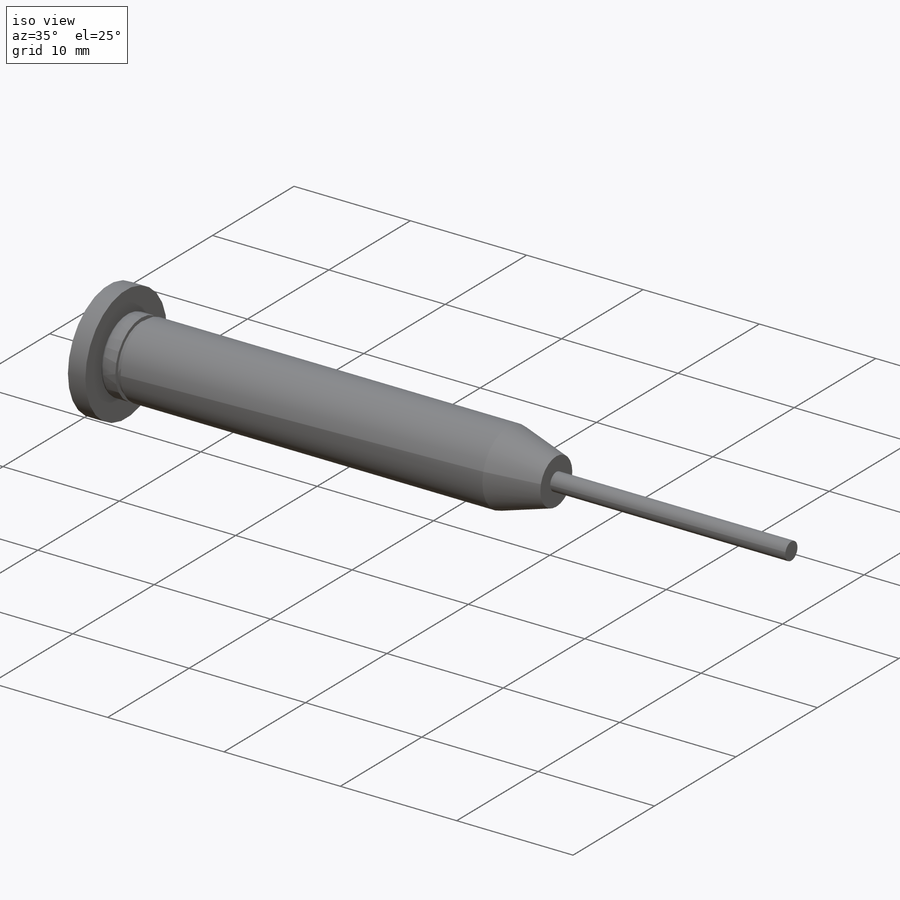
[diagram: iso view]
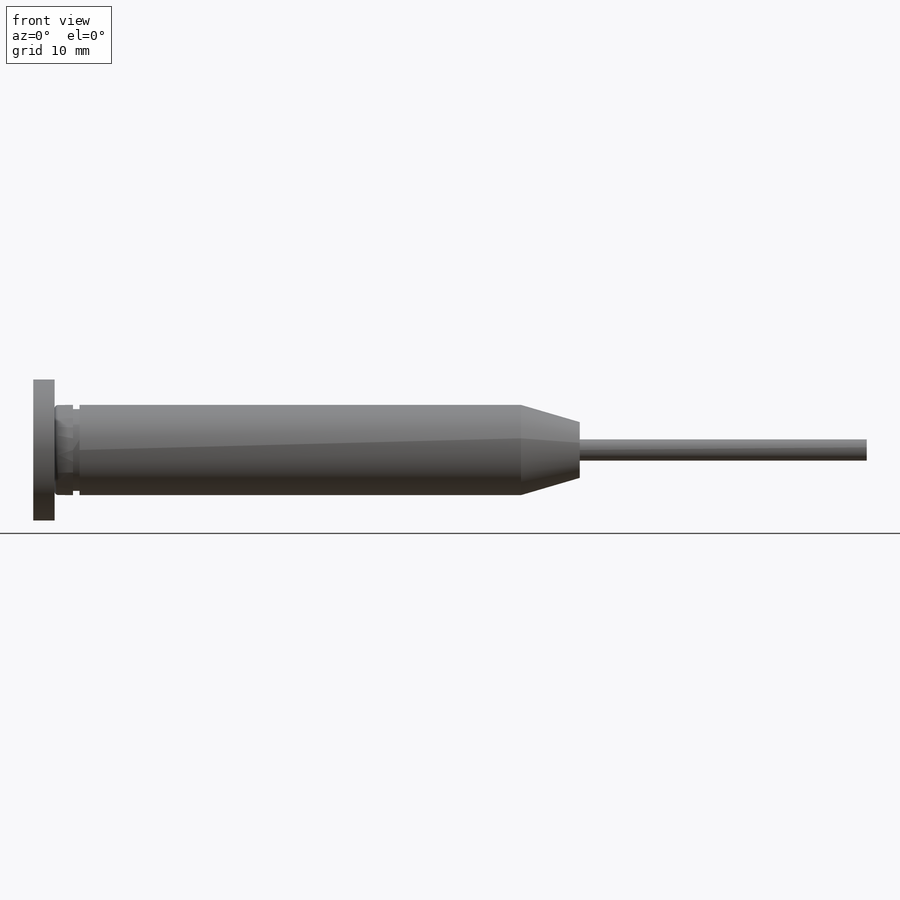
[diagram: front view]
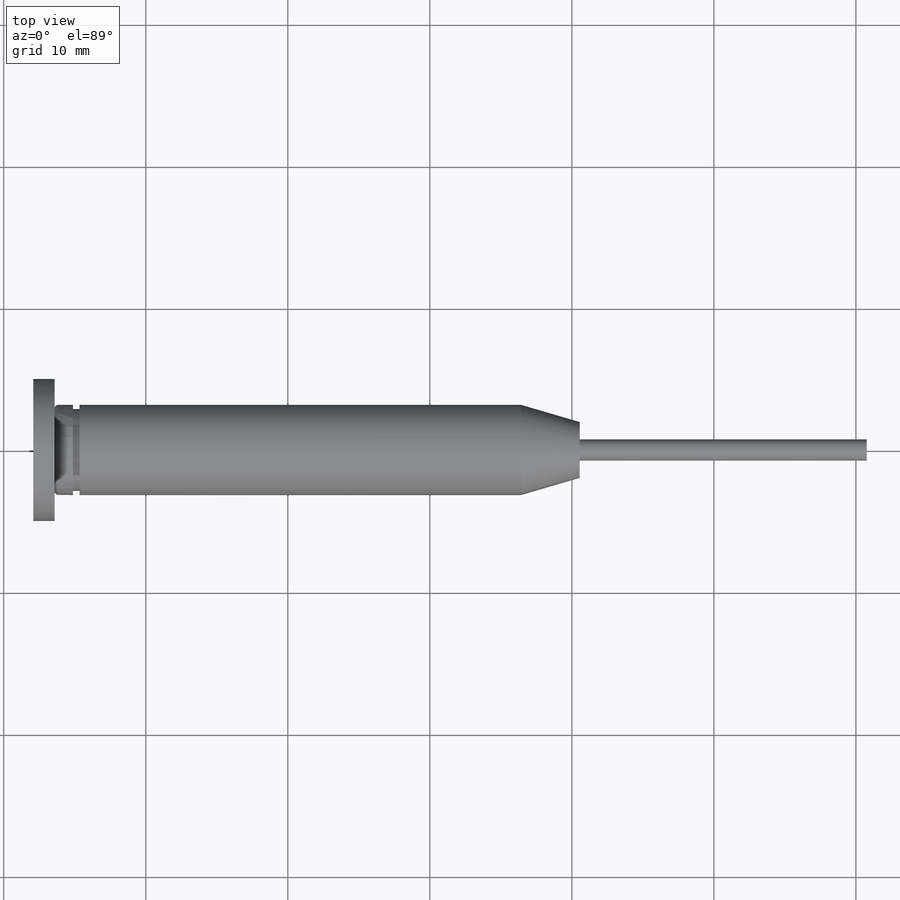
[diagram: top view]
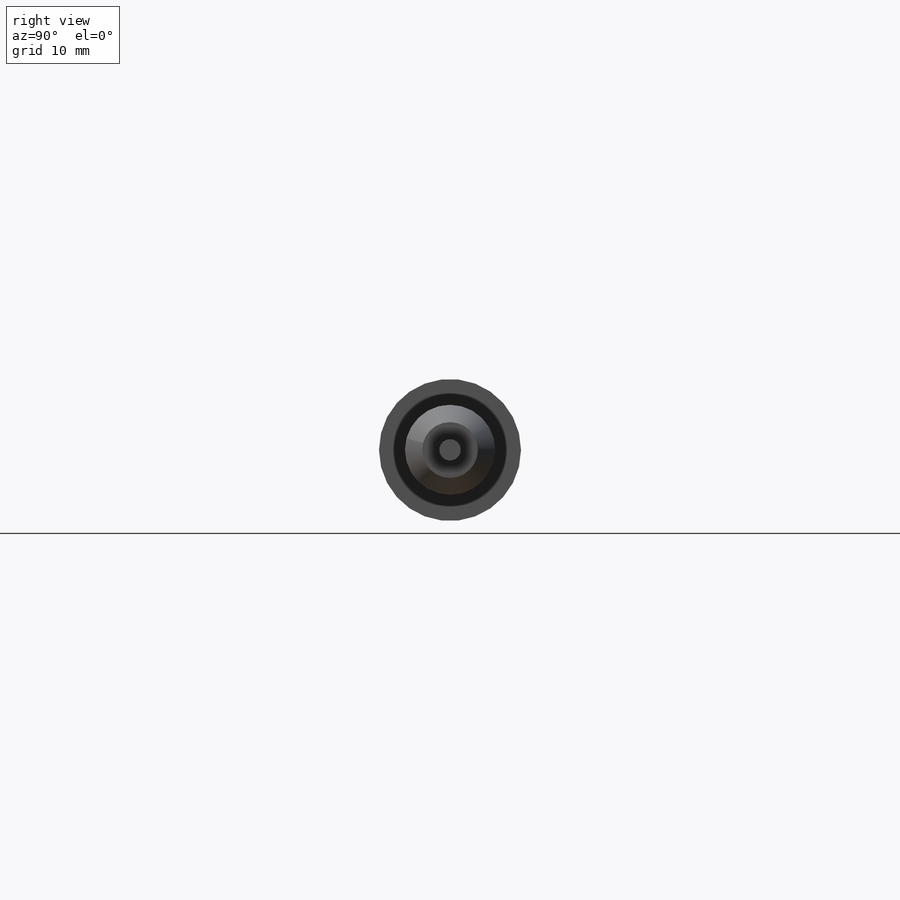
[diagram: right view]
SOLIDWORKS PART (.sldprt)
format: sldprt  version: not decoded by parser v0  size: 193,024 bytes
history: native  units: mm
features: sketch x5, revolve x2, extrude x2, material x1, fillet x1, cut_extrude x1 (+12 scaffold rows collapsed)
feature tree (24):
  scaffold x12  (default folders/planes/origin — collapsed)
  material  "Material <not specified>"
  sketch  "Sketch1"  dims[c1.D1=~55.495354mm c1.D2=~103.796551mm c2.D1=32.84mm c2.D2=3.175mm c2.D3=~9.061575mm c2.D4=4.31mm c3.D3=4.31mm c4.D3=32.28deg c5.D3=19.0mm c5.D5=0.75mm c5.D6=0.3mm c5.D7=0.45mm c5.D8=1.3mm c5.D9=0.75mm]
  revolve  "Revolve1"  Angle=360deg
  fillet  "Fillet1"  Radius=0.25mm
  sketch  "Sketch2"  dims[D1=0.75mm D2=20.2mm]
  revolve  "Revolve2"  Angle=360deg
  sketch  "Sketch3"  dims[D1=2.425mm]
  extrude  "Boss-Extrude1"  Depth=10mm
  sketch  "Sketch4"  dims[D1=3.0mm]
  cut_extrude  "Cut-Extrude1"  Depth=15mm
  sketch  "Sketch6"  dims[D1=10.0mm]
  extrude  "Boss-Extrude2"  Depth=1.5mm
decode coverage: 11 of 11 modeling features carry decoded parameters
note: ~ marks probable driven/reference dimensions
note: suppression state not decoded; provenance and decode notes live in map.json
